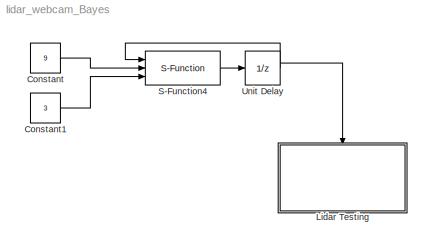
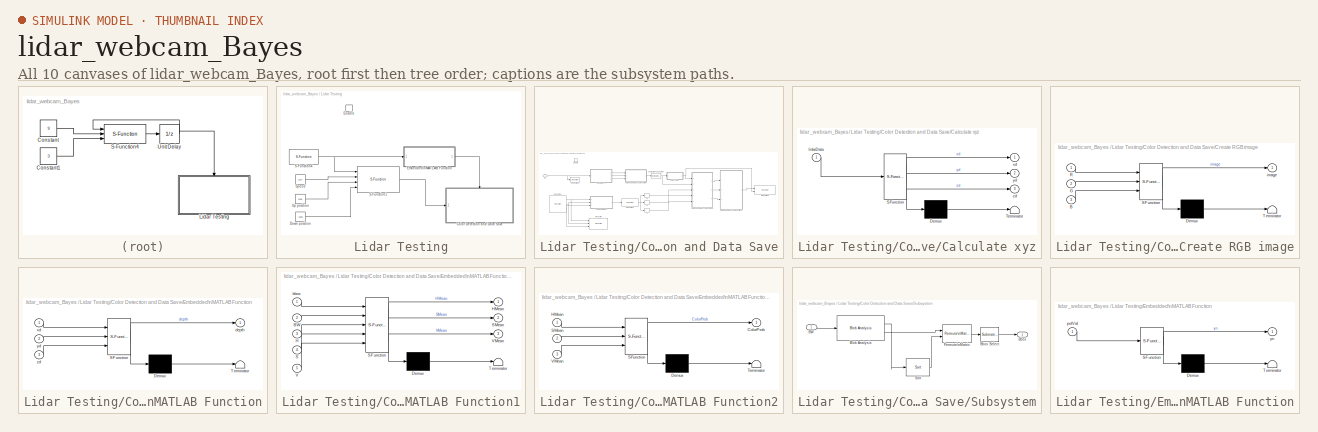
[diagram: thumbnail index - all 10 canvases of the model, root first then tree order]
MODEL lidar_webcam_Bayes
KIND model
BLOCK [Constant] Constant
  OutDataType = fixdt(1, 16)
  OutDataTypeMode = int32
  OutDataTypeStr = int32
  OutScaling = 2^0
  Value = 9
BLOCK [Constant] Constant1
  OutDataType = fixdt(1, 16)
  OutDataTypeMode = int32
  OutDataTypeStr = int32
  OutScaling = 2^0
  Value = 3
BLOCK [SubSystem] Lidar Testing
  FunctionWithSeparateData = off
  MaskHideContents = off
  MinAlgLoopOccurrences = off
  Opaque = off
  Ports = [0, 0, 1]
  PropExecContextOutsideSubsystem = off
  RTWSystemCode = Auto
  RequestExecContextInheritance = off
  TreatAsAtomicUnit = on
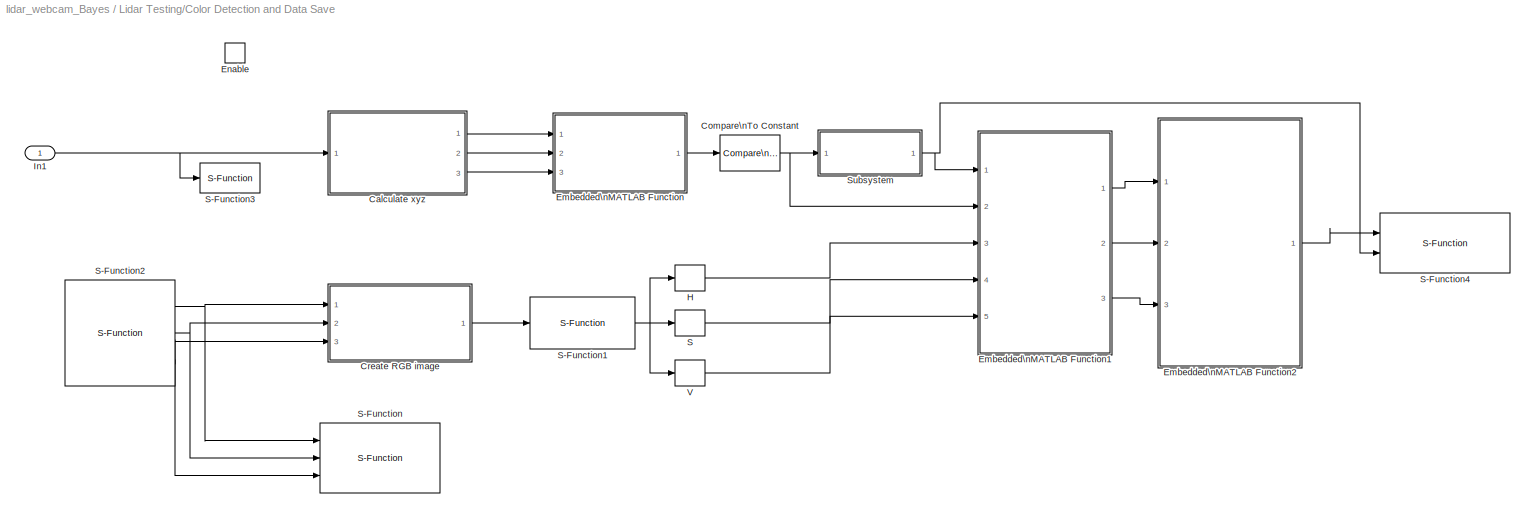
BLOCK [SubSystem] Lidar Testing/Color Detection and Data Save
  FunctionWithSeparateData = off
  MaskHideContents = off
  MinAlgLoopOccurrences = off
  Opaque = off
  Ports = [1, 0, 1]
  PropExecContextOutsideSubsystem = off
  RTWSystemCode = Auto
  RequestExecContextInheritance = off
  TreatAsAtomicUnit = on
BLOCK [SubSystem] Lidar Testing/Color Detection and Data Save/Calculate xyz
  FunctionWithSeparateData = off
  MaskDescription = Embedded MATLAB block
  MaskDisplay = disp('xyz_calc');
  MaskHideContents = off
  MaskIconFrame = on
  MaskIconOpaque = off
  MaskIconRotate = none
  MaskIconUnits = autoscale
  MaskPortRotate = default
  MaskSelfModifiable = on
  MaskType = Stateflow
  MinAlgLoopOccurrences = off
  Opaque = off
  PermitHierarchicalResolution = ExplicitOnly
  Ports = [1, 3]
  PropExecContextOutsideSubsystem = off
  RTWSystemCode = Auto
  RequestExecContextInheritance = off
BLOCK [Demux] Lidar Testing/Color Detection and Data Save/Calculate xyz/ Demux 
  Outputs = 1
  Ports = [1, 1]
BLOCK [S-Function] Lidar Testing/Color Detection and Data Save/Calculate xyz/ SFunction 
  EnableBusSupport = on
  FunctionName = sf_sfun
  PortCounts = [1 4]
  Ports = [1, 4]
  Tag = Stateflow S-Function lidar_webcam_Bayes 2
BLOCK [Terminator] Lidar Testing/Color Detection and Data Save/Calculate xyz/ Terminator 
BLOCK [Inport] Lidar Testing/Color Detection and Data Save/Calculate xyz/lidarData
  IconDisplay = Port number
  OutDataType = sfix(16)
  OutScaling = 2^0
BLOCK [Outport] Lidar Testing/Color Detection and Data Save/Calculate xyz/xd
  IconDisplay = Port number
  OutDataType = sfix(16)
  OutScaling = 2^0
BLOCK [Outport] Lidar Testing/Color Detection and Data Save/Calculate xyz/yd
  IconDisplay = Port number
  Port = 2
BLOCK [Outport] Lidar Testing/Color Detection and Data Save/Calculate xyz/zd
  IconDisplay = Port number
  Port = 3
BLOCK [Reference] Lidar Testing/Color Detection and Data Save/Compare\nTo Constant  REF=simulink/Logic and Bit\nOperations/Compare\nTo Constant
  FunctionWithSeparateData = off
  LogicOutDataTypeMode = uint8
  Ports = [1, 1]
  RTWMemSecDataConstants = Inherit from model
  RTWMemSecDataInternal = Inherit from model
  RTWMemSecDataParameters = Inherit from model
  RTWMemSecFuncExecute = Inherit from model
  RTWMemSecFuncInitTerm = Inherit from model
  ShowPortLabels = FromPortIcon
  SourceBlock = simulink/Logic and Bit\nOperations/Compare\nTo Constant
  SourceType = Compare To Constant
  SystemSampleTime = -1
  ZeroCross = off
  const = 5000
  relop = <=
BLOCK [SubSystem] Lidar Testing/Color Detection and Data Save/Create RGB image
  FunctionWithSeparateData = off
  MaskDescription = Embedded MATLAB block
  MaskDisplay = disp('create_image');
  MaskHideContents = off
  MaskIconFrame = on
  MaskIconOpaque = off
  MaskIconRotate = none
  MaskIconUnits = autoscale
  MaskPortRotate = default
  MaskSelfModifiable = on
  MaskType = Stateflow
  MinAlgLoopOccurrences = off
  Opaque = off
  PermitHierarchicalResolution = ExplicitOnly
  Ports = [3, 1]
  PropExecContextOutsideSubsystem = off
  RTWSystemCode = Auto
  RequestExecContextInheritance = off
BLOCK [Demux] Lidar Testing/Color Detection and Data Save/Create RGB image/ Demux 
  Outputs = 1
  Ports = [1, 1]
BLOCK [S-Function] Lidar Testing/Color Detection and Data Save/Create RGB image/ SFunction 
  EnableBusSupport = on
  FunctionName = sf_sfun
  PortCounts = [3 2]
  Ports = [3, 2]
  Tag = Stateflow S-Function lidar_webcam_Bayes 3
BLOCK [Terminator] Lidar Testing/Color Detection and Data Save/Create RGB image/ Terminator 
BLOCK [Inport] Lidar Testing/Color Detection and Data Save/Create RGB image/B
  IconDisplay = Port number
  Port = 3
BLOCK [Inport] Lidar Testing/Color Detection and Data Save/Create RGB image/G
  IconDisplay = Port number
  Port = 2
BLOCK [Inport] Lidar Testing/Color Detection and Data Save/Create RGB image/R
  IconDisplay = Port number
  OutDataType = sfix(16)
  OutScaling = 2^0
BLOCK [Outport] Lidar Testing/Color Detection and Data Save/Create RGB image/image
  IconDisplay = Port number
  OutDataType = sfix(16)
  OutScaling = 2^0
BLOCK [SubSystem] Lidar Testing/Color Detection and Data Save/Embedded\nMATLAB Function
  FunctionWithSeparateData = off
  MaskDescription = Embedded MATLAB block
  MaskDisplay = disp('scan2depth');
  MaskHideContents = off
  MaskIconFrame = on
  MaskIconOpaque = off
  MaskIconRotate = none
  MaskIconUnits = autoscale
  MaskPortRotate = default
  MaskSelfModifiable = on
  MaskType = Stateflow
  MinAlgLoopOccurrences = off
  Opaque = off
  PermitHierarchicalResolution = ExplicitOnly
  Ports = [3, 1]
  PropExecContextOutsideSubsystem = off
  RTWSystemCode = Auto
  RequestExecContextInheritance = off
BLOCK [Demux] Lidar Testing/Color Detection and Data Save/Embedded\nMATLAB Function/ Demux 
  Outputs = 1
  Ports = [1, 1]
BLOCK [S-Function] Lidar Testing/Color Detection and Data Save/Embedded\nMATLAB Function/ SFunction 
  EnableBusSupport = on
  FunctionName = sf_sfun
  PortCounts = [3 2]
  Ports = [3, 2]
  Tag = Stateflow S-Function lidar_webcam_Bayes 4
BLOCK [Terminator] Lidar Testing/Color Detection and Data Save/Embedded\nMATLAB Function/ Terminator 
BLOCK [Outport] Lidar Testing/Color Detection and Data Save/Embedded\nMATLAB Function/depth
  IconDisplay = Port number
  OutDataType = sfix(16)
  OutScaling = 2^0
BLOCK [Inport] Lidar Testing/Color Detection and Data Save/Embedded\nMATLAB Function/xd
  IconDisplay = Port number
  OutDataType = sfix(16)
  OutScaling = 2^0
BLOCK [Inport] Lidar Testing/Color Detection and Data Save/Embedded\nMATLAB Function/yd
  IconDisplay = Port number
  Port = 2
BLOCK [Inport] Lidar Testing/Color Detection and Data Save/Embedded\nMATLAB Function/zd
  IconDisplay = Port number
  Port = 3
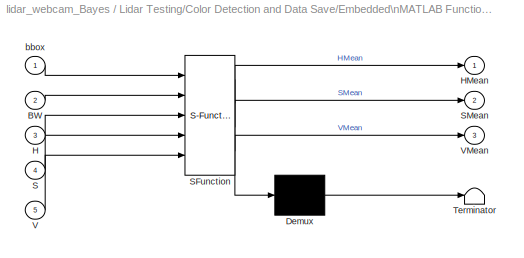
BLOCK [SubSystem] Lidar Testing/Color Detection and Data Save/Embedded\nMATLAB Function1
  FunctionWithSeparateData = off
  MaskDescription = Embedded MATLAB block
  MaskDisplay = disp('bbox_hist');
  MaskHideContents = off
  MaskIconFrame = on
  MaskIconOpaque = off
  MaskIconRotate = none
  MaskIconUnits = autoscale
  MaskPortRotate = default
  MaskSelfModifiable = on
  MaskType = Stateflow
  MinAlgLoopOccurrences = off
  Opaque = off
  PermitHierarchicalResolution = ExplicitOnly
  Ports = [5, 3]
  PropExecContextOutsideSubsystem = off
  RTWSystemCode = Auto
  RequestExecContextInheritance = off
BLOCK [Demux] Lidar Testing/Color Detection and Data Save/Embedded\nMATLAB Function1/ Demux 
  Outputs = 1
  Ports = [1, 1]
BLOCK [S-Function] Lidar Testing/Color Detection and Data Save/Embedded\nMATLAB Function1/ SFunction 
  EnableBusSupport = on
  FunctionName = sf_sfun
  PortCounts = [5 4]
  Ports = [5, 4]
  Tag = Stateflow S-Function lidar_webcam_Bayes 5
BLOCK [Terminator] Lidar Testing/Color Detection and Data Save/Embedded\nMATLAB Function1/ Terminator 
BLOCK [Inport] Lidar Testing/Color Detection and Data Save/Embedded\nMATLAB Function1/BW
  IconDisplay = Port number
  Port = 2
BLOCK [Inport] Lidar Testing/Color Detection and Data Save/Embedded\nMATLAB Function1/H
  IconDisplay = Port number
  Port = 3
BLOCK [Outport] Lidar Testing/Color Detection and Data Save/Embedded\nMATLAB Function1/HMean
  IconDisplay = Port number
  OutDataType = sfix(16)
  OutScaling = 2^0
BLOCK [Inport] Lidar Testing/Color Detection and Data Save/Embedded\nMATLAB Function1/S
  IconDisplay = Port number
  Port = 4
BLOCK [Outport] Lidar Testing/Color Detection and Data Save/Embedded\nMATLAB Function1/SMean
  IconDisplay = Port number
  Port = 2
BLOCK [Inport] Lidar Testing/Color Detection and Data Save/Embedded\nMATLAB Function1/V
  IconDisplay = Port number
  Port = 5
BLOCK [Outport] Lidar Testing/Color Detection and Data Save/Embedded\nMATLAB Function1/VMean
  IconDisplay = Port number
  Port = 3
BLOCK [Inport] Lidar Testing/Color Detection and Data Save/Embedded\nMATLAB Function1/bbox
  IconDisplay = Port number
  OutDataType = sfix(16)
  OutScaling = 2^0
BLOCK [SubSystem] Lidar Testing/Color Detection and Data Save/Embedded\nMATLAB Function2
  FunctionWithSeparateData = off
  MaskDescription = Embedded MATLAB block
  MaskDisplay = disp('BayesFilter');
  MaskHideContents = off
  MaskIconFrame = on
  MaskIconOpaque = off
  MaskIconRotate = none
  MaskIconUnits = autoscale
  MaskPortRotate = default
  MaskSelfModifiable = on
  MaskType = Stateflow
  MinAlgLoopOccurrences = off
  Opaque = off
  PermitHierarchicalResolution = ExplicitOnly
  Ports = [3, 1]
  PropExecContextOutsideSubsystem = off
  RTWSystemCode = Auto
  RequestExecContextInheritance = off
BLOCK [Demux] Lidar Testing/Color Detection and Data Save/Embedded\nMATLAB Function2/ Demux 
  Outputs = 1
  Ports = [1, 1]
BLOCK [S-Function] Lidar Testing/Color Detection and Data Save/Embedded\nMATLAB Function2/ SFunction 
  EnableBusSupport = on
  FunctionName = sf_sfun
  PortCounts = [3 2]
  Ports = [3, 2]
  Tag = Stateflow S-Function lidar_webcam_Bayes 6
BLOCK [Terminator] Lidar Testing/Color Detection and Data Save/Embedded\nMATLAB Function2/ Terminator 
BLOCK [Outport] Lidar Testing/Color Detection and Data Save/Embedded\nMATLAB Function2/ColorProb
  IconDisplay = Port number
  OutDataType = sfix(16)
  OutScaling = 2^0
BLOCK [Inport] Lidar Testing/Color Detection and Data Save/Embedded\nMATLAB Function2/HMean
  IconDisplay = Port number
  OutDataType = sfix(16)
  OutScaling = 2^0
BLOCK [Inport] Lidar Testing/Color Detection and Data Save/Embedded\nMATLAB Function2/SMean
  IconDisplay = Port number
  Port = 2
BLOCK [Inport] Lidar Testing/Color Detection and Data Save/Embedded\nMATLAB Function2/VMean
  IconDisplay = Port number
  Port = 3
BLOCK [EnablePort] Lidar Testing/Color Detection and Data Save/Enable
  Ports = []
BLOCK [Selector] Lidar Testing/Color Detection and Data Save/H
  IndexOptions = Select all,Select all,Index vector (dialog)
  Indices = [1 3],1,1
  InputPortWidth = 3
  NumberOfDimensions = 3
  OutputSizes = 1,1,1
  Ports = [1, 1]
BLOCK [Inport] Lidar Testing/Color Detection and Data Save/In1
  IconDisplay = Port number
  OutDataType = fixdt(1, 16)
  OutScaling = 2^0
BLOCK [Selector] Lidar Testing/Color Detection and Data Save/S
  IndexOptions = Select all,Select all,Index vector (dialog)
  Indices = [1 3],1,2
  InputPortWidth = 3
  NumberOfDimensions = 3
  OutputSizes = 1,1,1
  Ports = [1, 1]
BLOCK [S-Function] Lidar Testing/Color Detection and Data Save/S-Function
  EnableBusSupport = off
  FunctionName = videoExport_v2
  Ports = [3]
BLOCK [S-Function] Lidar Testing/Color Detection and Data Save/S-Function1
  EnableBusSupport = off
  FunctionName = rgbtohsv_int_sfun
  Ports = [1, 1]
BLOCK [S-Function] Lidar Testing/Color Detection and Data Save/S-Function2
  EnableBusSupport = off
  FunctionName = WebcamTest
  Ports = [0, 3]
BLOCK [S-Function] Lidar Testing/Color Detection and Data Save/S-Function3
  EnableBusSupport = off
  FunctionName = lidarExport
  Ports = [1]
BLOCK [S-Function] Lidar Testing/Color Detection and Data Save/S-Function4
  EnableBusSupport = off
  FunctionName = BayesExport
  Ports = [2]
BLOCK [SubSystem] Lidar Testing/Color Detection and Data Save/Subsystem
  FunctionWithSeparateData = off
  MaskHideContents = off
  MinAlgLoopOccurrences = off
  Opaque = off
  Ports = [1, 1]
  PropExecContextOutsideSubsystem = off
  RTWSystemCode = Auto
  RequestExecContextInheritance = off
BLOCK [Inport] Lidar Testing/Color Detection and Data Save/Subsystem/BW
  IconDisplay = Port number
  OutDataType = fixdt(1, 16)
  OutScaling = 2^0
BLOCK [Outport] Lidar Testing/Color Detection and Data Save/Subsystem/Bbox
  IconDisplay = Port number
  OutDataType = fixdt(1, 16)
  OutScaling = 2^0
BLOCK [Reference] Lidar Testing/Color Detection and Data Save/Subsystem/Bbox Select  REF=dspmtrx3/Submatrix
  ColEndIndex = 1
  ColEndMode = Last
  ColSpan = All columns
  ColStartIndex = 1
  ColStartMode = First
  Ports = [1, 1]
  RowEndIndex = 1
  RowEndMode = Last
  RowSpan = One row
  RowStartIndex = 1
  RowStartMode = First
  SourceBlock = dspmtrx3/Submatrix
  SourceType = Submatrix
BLOCK [Reference] Lidar Testing/Color Detection and Data Save/Subsystem/Blob Analysis  REF=vipstatistics/Blob Analysis
  DialogController = vipDDGCreate
  DialogControllerArgs = DataTag0
  LockScale = off
  Ports = [1, 2]
  SourceBlock = vipstatistics/Blob Analysis
  SourceType = Blob Analysis
  accumFracLength = 0
  accumMode = Binary point scaling
  accumWordLength = 32
  angle = off
  area = on
  bBox = on
  centroid = off
  conn = 8
  eccentricity = off
  equivDiameterSq = off
  excludeBorderBlob = off
  extent = off
  fillValues = -1
  firstCoeffFracLength = 14
  firstCoeffMode = Binary point scaling
  firstCoeffWordLength = 16
  isCount = off
  isFill = on
  isLabel = off
  isOutVarDim = off
  majorAxis = off
  maxArea = intmax('uint32')
  maxBlobs = 20
  memoryFracLength = 16
  memoryMode = Same as product output
  memoryWordLength = 32
  minArea = 20
  minorAxis = off
  outDT = double
  outputFracLength = 16
  outputMode = Binary point scaling
  outputWordLength = 32
  overflowMode = off
  perimeter = off
  prodOutputFracLength = 16
  prodOutputMode = Binary point scaling
  prodOutputWordLength = 32
  roundingMode = Floor
  secondCoeffFracLength = 16
  secondCoeffMode = Binary point scaling
  secondCoeffWordLength = 32
  useMaxArea = off
  useMinArea = on
  warnIfNumBlobsExceeded = on
BLOCK [Reference] Lidar Testing/Color Detection and Data Save/Subsystem/Permute\nMatrix  REF=dspmtrx3/Permute\nMatrix
  Ports = [2, 1]
  SourceBlock = dspmtrx3/Permute\nMatrix
  SourceType = Permute Matrix
  ZeroOneIdxMode = One-based
  checkDims = off
  errmode = Clip index
  mode = Columns
BLOCK [Reference] Lidar Testing/Color Detection and Data Save/Subsystem/Sort  REF=dspstat3/Sort
  DialogController = dspDDGCreate
  DialogControllerArgs = DataTag1
  LockScale = off
  Ports = [1, 1]
  SourceBlock = dspstat3/Sort
  SourceType = Sort
  accumFracLength = 30
  accumMode = Same as product output
  accumWordLength = 32
  additionalParams = off
  allowOverrides = on
  dir = Descending
  otype = Index
  overflowMode = off
  prodOutputFracLength = 30
  prodOutputMode = Same as input
  prodOutputWordLength = 32
  roundingMode = Floor
  sortAlg = Quick sort
BLOCK [Selector] Lidar Testing/Color Detection and Data Save/V
  IndexOptions = Select all,Select all,Index vector (dialog)
  Indices = [1 3],1,3
  InputPortWidth = 3
  NumberOfDimensions = 3
  OutputSizes = 1,1,1
  Ports = [1, 1]
BLOCK [Constant] Lidar Testing/Down position
  OutDataType = fixdt(1, 16)
  OutScaling = 2^0
  Value = -1036
BLOCK [SubSystem] Lidar Testing/Embedded\nMATLAB Function
  FunctionWithSeparateData = off
  MaskDescription = Embedded MATLAB block
  MaskDisplay = disp('check_pot_val');
  MaskHideContents = off
  MaskIconFrame = on
  MaskIconOpaque = off
  MaskIconRotate = none
  MaskIconUnits = autoscale
  MaskPortRotate = default
  MaskSelfModifiable = on
  MaskType = Stateflow
  MinAlgLoopOccurrences = off
  Opaque = off
  PermitHierarchicalResolution = ExplicitOnly
  Ports = [1, 1]
  PropExecContextOutsideSubsystem = off
  RTWSystemCode = Auto
  RequestExecContextInheritance = off
BLOCK [Demux] Lidar Testing/Embedded\nMATLAB Function/ Demux 
  Outputs = 1
  Ports = [1, 1]
BLOCK [S-Function] Lidar Testing/Embedded\nMATLAB Function/ SFunction 
  EnableBusSupport = on
  FunctionName = sf_sfun
  PortCounts = [1 2]
  Ports = [1, 2]
  Tag = Stateflow S-Function lidar_webcam_Bayes 1
BLOCK [Terminator] Lidar Testing/Embedded\nMATLAB Function/ Terminator 
BLOCK [Inport] Lidar Testing/Embedded\nMATLAB Function/potVal
  IconDisplay = Port number
  OutDataType = sfix(16)
  OutScaling = 2^0
BLOCK [Outport] Lidar Testing/Embedded\nMATLAB Function/yn
  IconDisplay = Port number
  OutDataType = sfix(16)
  OutScaling = 2^0
BLOCK [EnablePort] Lidar Testing/Enable
  Ports = []
BLOCK [S-Function] Lidar Testing/S-Function1
  EnableBusSupport = off
  FunctionName = lidar_zero_test_v3
  Ports = [4, 1]
BLOCK [S-Function] Lidar Testing/S-Function4
  EnableBusSupport = off
  FunctionName = pot_readerV2
  Ports = [0, 1]
BLOCK [Constant] Lidar Testing/Speed
  OutDataType = fixdt(1, 16)
  OutScaling = 2^0
  Value = 1214
BLOCK [Constant] Lidar Testing/Up position
  OutDataType = fixdt(1, 16)
  OutScaling = 2^0
  Value = 1036
BLOCK [S-Function] S-Function4
  EnableBusSupport = off
  FunctionName = serialMaster3
  Ports = [3, 1]
BLOCK [UnitDelay] Unit Delay
  SampleTime = -1
LINE Constant1:1 -> S-Function4:3
LINE Constant:1 -> S-Function4:2
LINE Lidar Testing/Color Detection and Data Save/Calculate xyz/ Demux :1 -> Lidar Testing/Color Detection and Data Save/Calculate xyz/ Terminator :1
LINE Lidar Testing/Color Detection and Data Save/Calculate xyz/ SFunction :1 -> Lidar Testing/Color Detection and Data Save/Calculate xyz/ Demux :1
LINE Lidar Testing/Color Detection and Data Save/Calculate xyz/ SFunction :2 -> Lidar Testing/Color Detection and Data Save/Calculate xyz/xd:1
LINE Lidar Testing/Color Detection and Data Save/Calculate xyz/ SFunction :3 -> Lidar Testing/Color Detection and Data Save/Calculate xyz/yd:1
LINE Lidar Testing/Color Detection and Data Save/Calculate xyz/ SFunction :4 -> Lidar Testing/Color Detection and Data Save/Calculate xyz/zd:1
LINE Lidar Testing/Color Detection and Data Save/Calculate xyz/lidarData:1 -> Lidar Testing/Color Detection and Data Save/Calculate xyz/ SFunction :1
LINE Lidar Testing/Color Detection and Data Save/Calculate xyz:1 -> Lidar Testing/Color Detection and Data Save/Embedded\nMATLAB Function:1
LINE Lidar Testing/Color Detection and Data Save/Calculate xyz:2 -> Lidar Testing/Color Detection and Data Save/Embedded\nMATLAB Function:2
LINE Lidar Testing/Color Detection and Data Save/Calculate xyz:3 -> Lidar Testing/Color Detection and Data Save/Embedded\nMATLAB Function:3
NET Lidar Testing/Color Detection and Data Save/Compare\nTo Constant:1 -> Lidar Testing/Color Detection and Data Save/Embedded\nMATLAB Function1:2, Lidar Testing/Color Detection and Data Save/Subsystem:1
LINE Lidar Testing/Color Detection and Data Save/Create RGB image/ Demux :1 -> Lidar Testing/Color Detection and Data Save/Create RGB image/ Terminator :1
LINE Lidar Testing/Color Detection and Data Save/Create RGB image/ SFunction :1 -> Lidar Testing/Color Detection and Data Save/Create RGB image/ Demux :1
LINE Lidar Testing/Color Detection and Data Save/Create RGB image/ SFunction :2 -> Lidar Testing/Color Detection and Data Save/Create RGB image/image:1
LINE Lidar Testing/Color Detection and Data Save/Create RGB image/B:1 -> Lidar Testing/Color Detection and Data Save/Create RGB image/ SFunction :3
LINE Lidar Testing/Color Detection and Data Save/Create RGB image/G:1 -> Lidar Testing/Color Detection and Data Save/Create RGB image/ SFunction :2
LINE Lidar Testing/Color Detection and Data Save/Create RGB image/R:1 -> Lidar Testing/Color Detection and Data Save/Create RGB image/ SFunction :1
LINE Lidar Testing/Color Detection and Data Save/Create RGB image:1 -> Lidar Testing/Color Detection and Data Save/S-Function1:1
LINE Lidar Testing/Color Detection and Data Save/Embedded\nMATLAB Function/ Demux :1 -> Lidar Testing/Color Detection and Data Save/Embedded\nMATLAB Function/ Terminator :1
LINE Lidar Testing/Color Detection and Data Save/Embedded\nMATLAB Function/ SFunction :1 -> Lidar Testing/Color Detection and Data Save/Embedded\nMATLAB Function/ Demux :1
LINE Lidar Testing/Color Detection and Data Save/Embedded\nMATLAB Function/ SFunction :2 -> Lidar Testing/Color Detection and Data Save/Embedded\nMATLAB Function/depth:1
LINE Lidar Testing/Color Detection and Data Save/Embedded\nMATLAB Function/xd:1 -> Lidar Testing/Color Detection and Data Save/Embedded\nMATLAB Function/ SFunction :1
LINE Lidar Testing/Color Detection and Data Save/Embedded\nMATLAB Function/yd:1 -> Lidar Testing/Color Detection and Data Save/Embedded\nMATLAB Function/ SFunction :2
LINE Lidar Testing/Color Detection and Data Save/Embedded\nMATLAB Function/zd:1 -> Lidar Testing/Color Detection and Data Save/Embedded\nMATLAB Function/ SFunction :3
LINE Lidar Testing/Color Detection and Data Save/Embedded\nMATLAB Function1/ Demux :1 -> Lidar Testing/Color Detection and Data Save/Embedded\nMATLAB Function1/ Terminator :1
LINE Lidar Testing/Color Detection and Data Save/Embedded\nMATLAB Function1/ SFunction :1 -> Lidar Testing/Color Detection and Data Save/Embedded\nMATLAB Function1/ Demux :1
LINE Lidar Testing/Color Detection and Data Save/Embedded\nMATLAB Function1/ SFunction :2 -> Lidar Testing/Color Detection and Data Save/Embedded\nMATLAB Function1/HMean:1
LINE Lidar Testing/Color Detection and Data Save/Embedded\nMATLAB Function1/ SFunction :3 -> Lidar Testing/Color Detection and Data Save/Embedded\nMATLAB Function1/SMean:1
LINE Lidar Testing/Color Detection and Data Save/Embedded\nMATLAB Function1/ SFunction :4 -> Lidar Testing/Color Detection and Data Save/Embedded\nMATLAB Function1/VMean:1
LINE Lidar Testing/Color Detection and Data Save/Embedded\nMATLAB Function1/BW:1 -> Lidar Testing/Color Detection and Data Save/Embedded\nMATLAB Function1/ SFunction :2
LINE Lidar Testing/Color Detection and Data Save/Embedded\nMATLAB Function1/H:1 -> Lidar Testing/Color Detection and Data Save/Embedded\nMATLAB Function1/ SFunction :3
LINE Lidar Testing/Color Detection and Data Save/Embedded\nMATLAB Function1/S:1 -> Lidar Testing/Color Detection and Data Save/Embedded\nMATLAB Function1/ SFunction :4
LINE Lidar Testing/Color Detection and Data Save/Embedded\nMATLAB Function1/V:1 -> Lidar Testing/Color Detection and Data Save/Embedded\nMATLAB Function1/ SFunction :5
LINE Lidar Testing/Color Detection and Data Save/Embedded\nMATLAB Function1/bbox:1 -> Lidar Testing/Color Detection and Data Save/Embedded\nMATLAB Function1/ SFunction :1
LINE Lidar Testing/Color Detection and Data Save/Embedded\nMATLAB Function1:1 -> Lidar Testing/Color Detection and Data Save/Embedded\nMATLAB Function2:1
LINE Lidar Testing/Color Detection and Data Save/Embedded\nMATLAB Function1:2 -> Lidar Testing/Color Detection and Data Save/Embedded\nMATLAB Function2:2
LINE Lidar Testing/Color Detection and Data Save/Embedded\nMATLAB Function1:3 -> Lidar Testing/Color Detection and Data Save/Embedded\nMATLAB Function2:3
LINE Lidar Testing/Color Detection and Data Save/Embedded\nMATLAB Function2/ Demux :1 -> Lidar Testing/Color Detection and Data Save/Embedded\nMATLAB Function2/ Terminator :1
LINE Lidar Testing/Color Detection and Data Save/Embedded\nMATLAB Function2/ SFunction :1 -> Lidar Testing/Color Detection and Data Save/Embedded\nMATLAB Function2/ Demux :1
LINE Lidar Testing/Color Detection and Data Save/Embedded\nMATLAB Function2/ SFunction :2 -> Lidar Testing/Color Detection and Data Save/Embedded\nMATLAB Function2/ColorProb:1
LINE Lidar Testing/Color Detection and Data Save/Embedded\nMATLAB Function2/HMean:1 -> Lidar Testing/Color Detection and Data Save/Embedded\nMATLAB Function2/ SFunction :1
LINE Lidar Testing/Color Detection and Data Save/Embedded\nMATLAB Function2/SMean:1 -> Lidar Testing/Color Detection and Data Save/Embedded\nMATLAB Function2/ SFunction :2
LINE Lidar Testing/Color Detection and Data Save/Embedded\nMATLAB Function2/VMean:1 -> Lidar Testing/Color Detection and Data Save/Embedded\nMATLAB Function2/ SFunction :3
LINE Lidar Testing/Color Detection and Data Save/Embedded\nMATLAB Function2:1 -> Lidar Testing/Color Detection and Data Save/S-Function4:1
LINE Lidar Testing/Color Detection and Data Save/Embedded\nMATLAB Function:1 -> Lidar Testing/Color Detection and Data Save/Compare\nTo Constant:1
LINE Lidar Testing/Color Detection and Data Save/H:1 -> Lidar Testing/Color Detection and Data Save/Embedded\nMATLAB Function1:3
NET Lidar Testing/Color Detection and Data Save/In1:1 -> Lidar Testing/Color Detection and Data Save/Calculate xyz:1, Lidar Testing/Color Detection and Data Save/S-Function3:1
NET Lidar Testing/Color Detection and Data Save/S-Function1:1 -> Lidar Testing/Color Detection and Data Save/H:1, Lidar Testing/Color Detection and Data Save/S:1, Lidar Testing/Color Detection and Data Save/V:1
NET Lidar Testing/Color Detection and Data Save/S-Function2:1 -> Lidar Testing/Color Detection and Data Save/Create RGB image:1, Lidar Testing/Color Detection and Data Save/S-Function:1
NET Lidar Testing/Color Detection and Data Save/S-Function2:2 -> Lidar Testing/Color Detection and Data Save/Create RGB image:2, Lidar Testing/Color Detection and Data Save/S-Function:2
NET Lidar Testing/Color Detection and Data Save/S-Function2:3 -> Lidar Testing/Color Detection and Data Save/Create RGB image:3, Lidar Testing/Color Detection and Data Save/S-Function:3
LINE Lidar Testing/Color Detection and Data Save/S:1 -> Lidar Testing/Color Detection and Data Save/Embedded\nMATLAB Function1:4
LINE Lidar Testing/Color Detection and Data Save/Subsystem/BW:1 -> Lidar Testing/Color Detection and Data Save/Subsystem/Blob Analysis:1
LINE Lidar Testing/Color Detection and Data Save/Subsystem/Bbox Select:1 -> Lidar Testing/Color Detection and Data Save/Subsystem/Bbox:1
LINE Lidar Testing/Color Detection and Data Save/Subsystem/Blob Analysis:1 -> Lidar Testing/Color Detection and Data Save/Subsystem/Sort:1
LINE Lidar Testing/Color Detection and Data Save/Subsystem/Blob Analysis:2 -> Lidar Testing/Color Detection and Data Save/Subsystem/Permute\nMatrix:1
LINE Lidar Testing/Color Detection and Data Save/Subsystem/Permute\nMatrix:1 -> Lidar Testing/Color Detection and Data Save/Subsystem/Bbox Select:1
LINE Lidar Testing/Color Detection and Data Save/Subsystem/Sort:1 -> Lidar Testing/Color Detection and Data Save/Subsystem/Permute\nMatrix:2
NET Lidar Testing/Color Detection and Data Save/Subsystem:1 -> Lidar Testing/Color Detection and Data Save/Embedded\nMATLAB Function1:1, Lidar Testing/Color Detection and Data Save/S-Function4:2
LINE Lidar Testing/Color Detection and Data Save/V:1 -> Lidar Testing/Color Detection and Data Save/Embedded\nMATLAB Function1:5
LINE Lidar Testing/Down position:1 -> Lidar Testing/S-Function1:4
LINE Lidar Testing/Embedded\nMATLAB Function/ Demux :1 -> Lidar Testing/Embedded\nMATLAB Function/ Terminator :1
LINE Lidar Testing/Embedded\nMATLAB Function/ SFunction :1 -> Lidar Testing/Embedded\nMATLAB Function/ Demux :1
LINE Lidar Testing/Embedded\nMATLAB Function/ SFunction :2 -> Lidar Testing/Embedded\nMATLAB Function/yn:1
LINE Lidar Testing/Embedded\nMATLAB Function/potVal:1 -> Lidar Testing/Embedded\nMATLAB Function/ SFunction :1
LINE Lidar Testing/Embedded\nMATLAB Function:1 -> Lidar Testing/Color Detection and Data Save:enable
LINE Lidar Testing/S-Function1:1 -> Lidar Testing/Color Detection and Data Save:1
NET Lidar Testing/S-Function4:1 -> Lidar Testing/Embedded\nMATLAB Function:1, Lidar Testing/S-Function1:1
LINE Lidar Testing/Speed:1 -> Lidar Testing/S-Function1:2
LINE Lidar Testing/Up position:1 -> Lidar Testing/S-Function1:3
LINE S-Function4:1 -> Unit Delay:1
NET Unit Delay:1 -> Lidar Testing:enable, S-Function4:1
note: NET lines group one-source signal fan-out (src -> all destinations, sorted); 1:1 wires keep LINE
CHART Lidar Testing/Embedded\nMATLAB Function states=1 transitions=1
  STATE_LABEL 'eML_blk_kernel()'
CHART Lidar Testing/Color Detection and Data Save/Calculate xyz states=1 transitions=1
  STATE_LABEL 'eML_blk_kernel()'
CHART Lidar Testing/Color Detection and Data Save/Create RGB image states=1 transitions=1
  STATE_LABEL 'eML_blk_kernel()'
CHART Lidar Testing/Color Detection and Data Save/Embedded\nMATLAB Function states=1 transitions=1
  STATE_LABEL 'eML_blk_kernel()'
CHART Lidar Testing/Color Detection and Data Save/Embedded\nMATLAB Function1 states=1 transitions=1
  STATE_LABEL 'eML_blk_kernel()'
CHART Lidar Testing/Color Detection and Data Save/Embedded\nMATLAB Function2 states=1 transitions=1
  STATE_LABEL 'eML_blk_kernel()'
